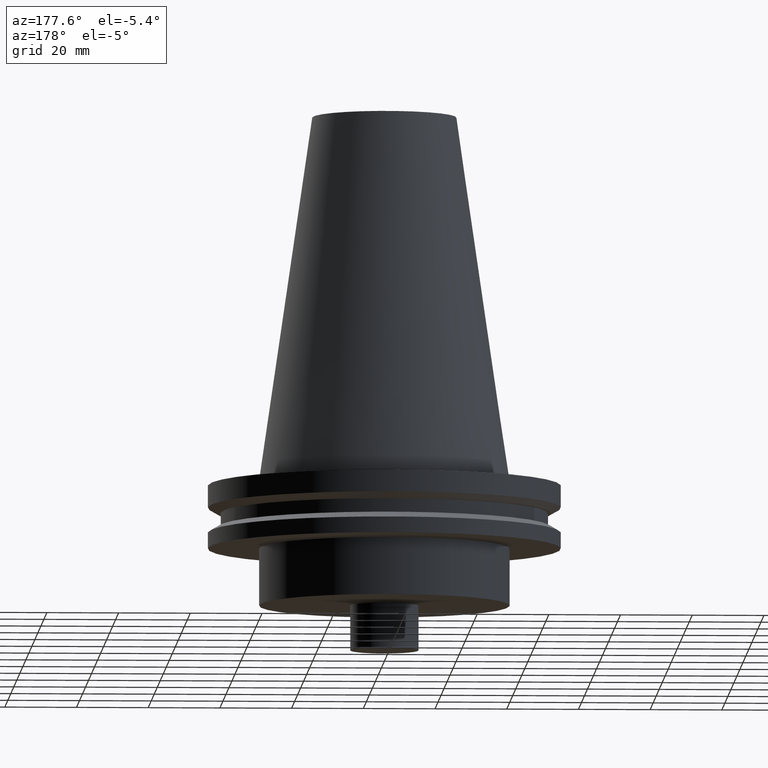
[diagram: clean part render]
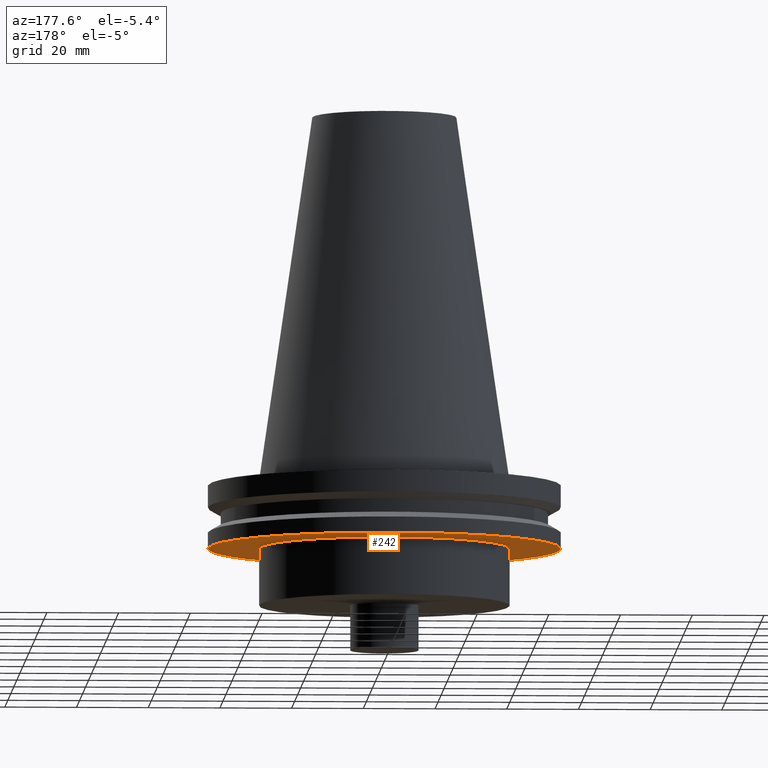
[diagram: same view with one face highlighted and labeled with its STEP entity id]
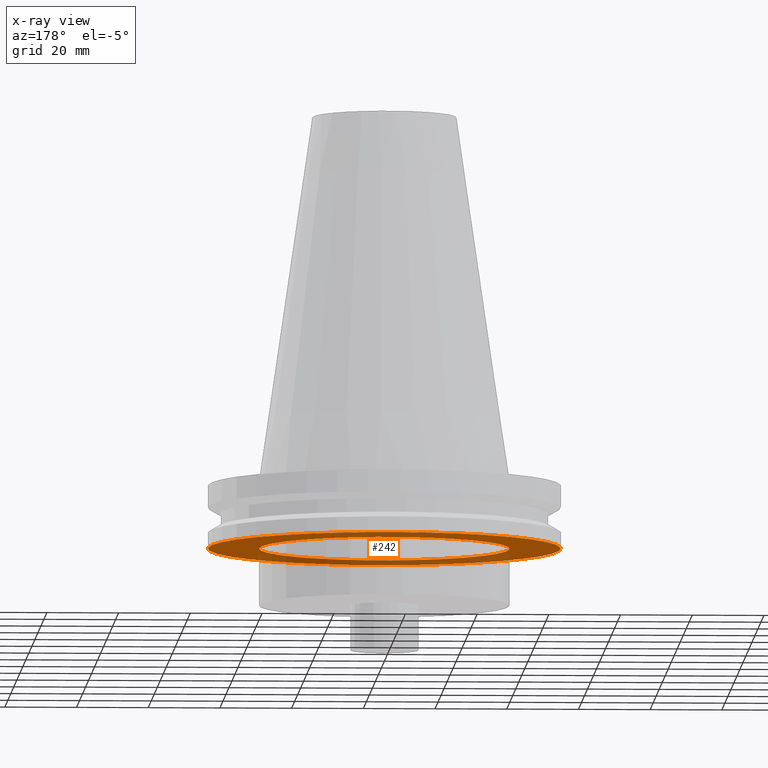
[diagram: x-ray of the same camera — body ghosted, the highlighted face saturated]
A machine part, auxiliary view. The second image highlights one B-rep face of the part: STEP entity #242.
The next image is the same camera in x-ray: the body ghosted, the highlighted face saturated — about 31% of this face is hidden behind the body in this view.
In plain terms, the highlighted planar face has unit normal (0, -0, 1).
Its self-contained STEP definition (entity closure, byte-faithful):
#6 = DIRECTION ( 'NONE',  ( 1.000000000000000000, 0.000000000000000000, 0.000000000000000000 ) ) ;
#68 = DIRECTION ( 'NONE',  ( -0.000000000000000000, -0.000000000000000000, 1.000000000000000000 ) ) ;
#85 = DIRECTION ( 'NONE',  ( 1.000000000000000000, 0.000000000000000000, 0.000000000000000000 ) ) ;
#97 = CARTESIAN_POINT ( 'NONE',  ( 34.92499999999999716, 0.000000000000000000, -19.04999999999999716 ) ) ;
#113 = DIRECTION ( 'NONE',  ( 0.000000000000000000, -0.000000000000000000, 1.000000000000000000 ) ) ;
#124 = EDGE_CURVE ( 'NONE', #395, #395, #363, .T. ) ;
#136 = AXIS2_PLACEMENT_3D ( 'NONE', #322, #113, #85 ) ;
#140 = FACE_OUTER_BOUND ( 'NONE', #388, .T. ) ;
#146 = EDGE_LOOP ( 'NONE', ( #199 ) ) ;
#156 = AXIS2_PLACEMENT_3D ( 'NONE', #268, #263, #237 ) ;
#171 = EDGE_CURVE ( 'NONE', #211, #211, #284, .T. ) ;
#195 = AXIS2_PLACEMENT_3D ( 'NONE', #243, #68, #6 ) ;
#199 = ORIENTED_EDGE ( 'NONE', *, *, #124, .T. ) ;
#211 = VERTEX_POINT ( 'NONE', #325 ) ;
#237 = DIRECTION ( 'NONE',  ( 1.000000000000000000, 0.000000000000000000, 0.000000000000000000 ) ) ;
#242 = ADVANCED_FACE ( 'NONE', ( #140, #267 ), #354, .F. ) ;
#243 = CARTESIAN_POINT ( 'NONE',  ( 0.000000000000000000, 0.000000000000000000, -19.04999999999999716 ) ) ;
#263 = DIRECTION ( 'NONE',  ( -0.000000000000000000, -0.000000000000000000, 1.000000000000000000 ) ) ;
#267 = FACE_BOUND ( 'NONE', #146, .T. ) ;
#268 = CARTESIAN_POINT ( 'NONE',  ( 0.000000000000000000, 0.000000000000000000, -19.04999999999999716 ) ) ;
#284 = CIRCLE ( 'NONE', #156, 49.21499999999998920 ) ;
#289 = ORIENTED_EDGE ( 'NONE', *, *, #171, .F. ) ;
#322 = CARTESIAN_POINT ( 'NONE',  ( 0.000000000000000000, 49.21499999999998920, -19.04999999999999716 ) ) ;
#325 = CARTESIAN_POINT ( 'NONE',  ( 49.21499999999998920, 0.000000000000000000, -19.04999999999999716 ) ) ;
#354 = PLANE ( 'NONE',  #136 ) ;
#363 = CIRCLE ( 'NONE', #195, 34.92499999999999716 ) ;
#388 = EDGE_LOOP ( 'NONE', ( #289 ) ) ;
#395 = VERTEX_POINT ( 'NONE', #97 ) ;